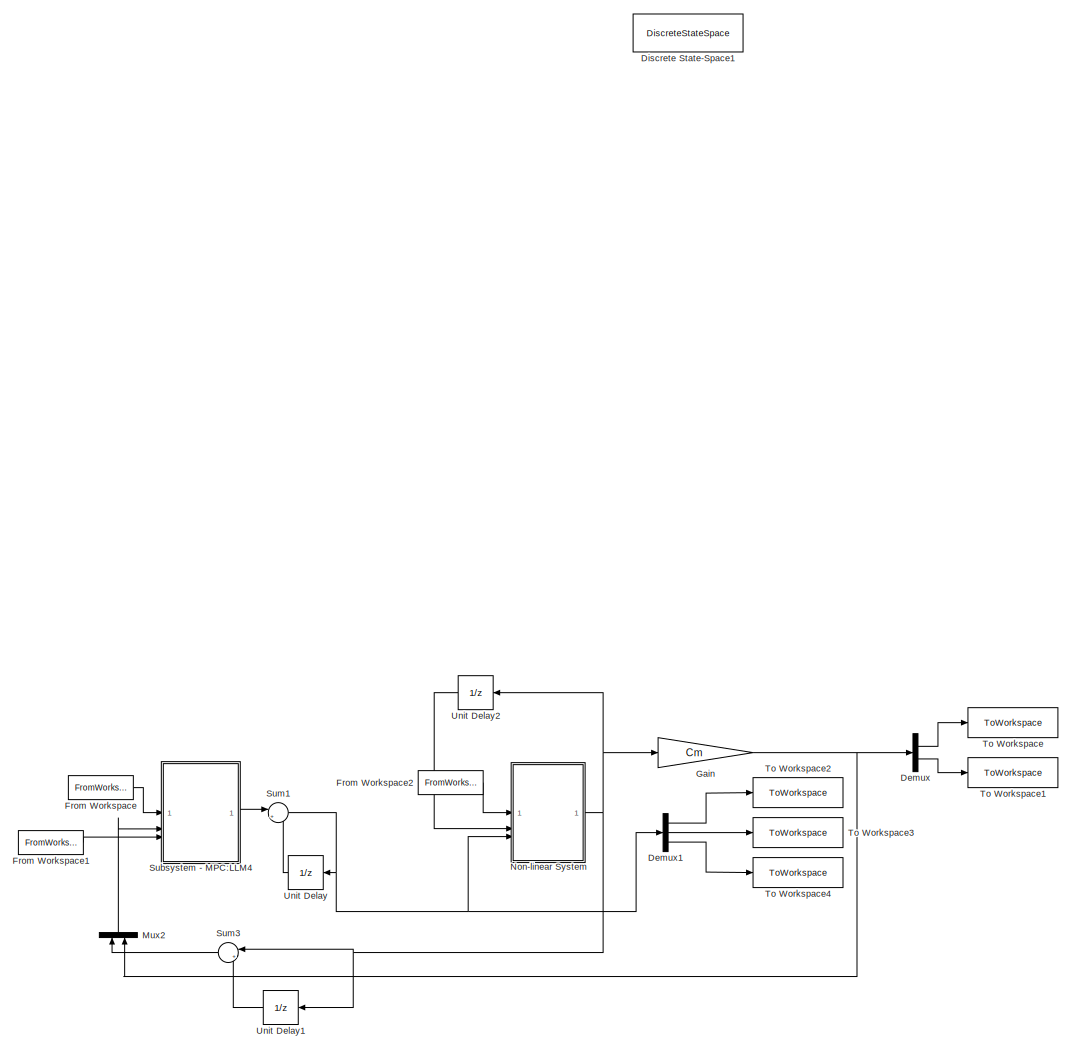
[diagram: root canvas - part 1/1, most of the canvas]
MODEL slx_29df47c121d3
KIND model
CONFIG AbsTol = auto
CONFIG EnableMultiTasking = off
CONFIG FixedStep = auto
CONFIG MaxStep = auto
CONFIG MinStep = auto
CONFIG RelTol = 1e-5
CONFIG SampleTimeConstraint = Unconstrained
CONFIG SolverName = VariableStepAuto
CONFIG StartTime = 0.0
CONFIG StopTime = T
BLOCK [Demux] Demux
  Outputs = 2
BLOCK [Demux] Demux1
  Outputs = 3
BLOCK [DiscreteStateSpace] Discrete State-Space1
  A = Am
  B = Bm
  C = C_hilf
  Commented = on
  D = D
  SampleTime = dt
BLOCK [FromWorkspace] From Workspace
  OutDataTypeStr = double
  SampleTime = dt
  VariableName = Y_fuehrung_SIM
BLOCK [FromWorkspace] From Workspace1
  OutDataTypeStr = double
  SampleTime = dt
  VariableName = dztrack_SIM
BLOCK [FromWorkspace] From Workspace2
  OutDataTypeStr = double
  SampleTime = dt
  VariableName = ztrack_SIM
BLOCK [Gain] Gain
  Gain = Cm
  Multiplication = Matrix(K*u)
BLOCK [Mux] Mux2
  DisplayOption = bar
  Inputs = 2
  NameLocation = right
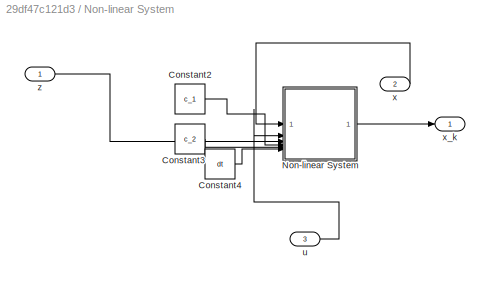
BLOCK [SubSystem] Non-linear System
BLOCK [Constant] Non-linear System/Constant2
  Value = c_1
BLOCK [Constant] Non-linear System/Constant3
  Value = c_2
BLOCK [Constant] Non-linear System/Constant4
  Value = dt
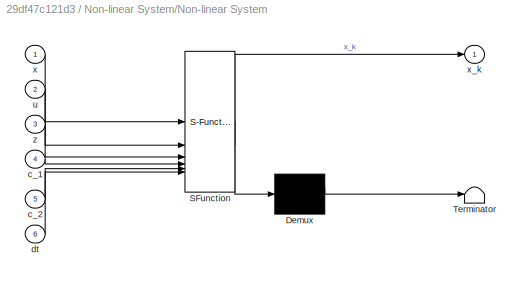
BLOCK [SubSystem] Non-linear System/Non-linear System
  ErrorFcn = Stateflow.Translate.translate
  LibrarySourceBlock = simulink/User-Defined\nFunctions/MATLAB Function
  PermitHierarchicalResolution = ExplicitOnly
  SFBlockType = MATLAB Function
  TreatAsAtomicUnit = on
BLOCK [Demux] Non-linear System/Non-linear System/ Demux 
  Outputs = 1
BLOCK [S-Function] Non-linear System/Non-linear System/ SFunction 
  EnableBusSupport = on
  FunctionName = sf_sfun
  PortCounts = [6 2]
  SFcnIsStateOwnerBlock = off
  SFunctionDeploymentMode = off
  Tag = Stateflow S-Function 1
BLOCK [Terminator] Non-linear System/Non-linear System/ Terminator 
BLOCK [Inport] Non-linear System/Non-linear System/c_1
  Port = 4
BLOCK [Inport] Non-linear System/Non-linear System/c_2
  Port = 5
BLOCK [Inport] Non-linear System/Non-linear System/dt
  Port = 6
BLOCK [Inport] Non-linear System/Non-linear System/u
  Port = 2
BLOCK [Inport] Non-linear System/Non-linear System/x
BLOCK [Outport] Non-linear System/Non-linear System/x_k
BLOCK [Inport] Non-linear System/Non-linear System/z
  Port = 3
BLOCK [Inport] Non-linear System/u
  Port = 3
BLOCK [Inport] Non-linear System/x
  Port = 2
BLOCK [Outport] Non-linear System/x_k
BLOCK [Inport] Non-linear System/z
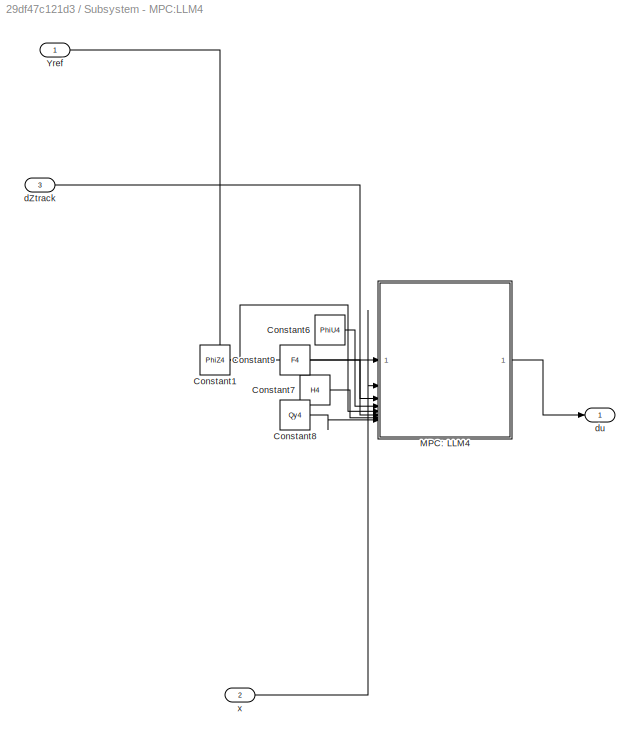
BLOCK [SubSystem] Subsystem - MPC:LLM4
BLOCK [Constant] Subsystem - MPC:LLM4/Constant1
  SampleTime = dt
  Value = PhiZ4
BLOCK [Constant] Subsystem - MPC:LLM4/Constant6
  SampleTime = dt
  Value = PhiU4
BLOCK [Constant] Subsystem - MPC:LLM4/Constant7
  SampleTime = dt
  Value = H4
BLOCK [Constant] Subsystem - MPC:LLM4/Constant8
  SampleTime = dt
  Value = Qy4
BLOCK [Constant] Subsystem - MPC:LLM4/Constant9
  SampleTime = dt
  Value = F4
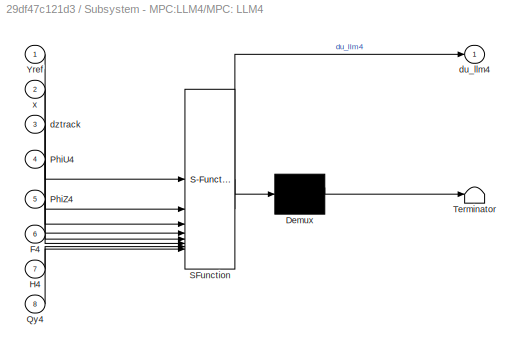
BLOCK [SubSystem] Subsystem - MPC:LLM4/MPC: LLM4
  ErrorFcn = Stateflow.Translate.translate
  LibrarySourceBlock = simulink/User-Defined\nFunctions/MATLAB Function
  PermitHierarchicalResolution = ExplicitOnly
  SFBlockType = MATLAB Function
  TreatAsAtomicUnit = on
BLOCK [Demux] Subsystem - MPC:LLM4/MPC: LLM4/ Demux 
  Outputs = 1
BLOCK [S-Function] Subsystem - MPC:LLM4/MPC: LLM4/ SFunction 
  EnableBusSupport = on
  FunctionName = sf_sfun
  PortCounts = [8 2]
  SFcnIsStateOwnerBlock = off
  SFunctionDeploymentMode = off
  Tag = Stateflow S-Function 2
BLOCK [Terminator] Subsystem - MPC:LLM4/MPC: LLM4/ Terminator 
BLOCK [Inport] Subsystem - MPC:LLM4/MPC: LLM4/F4
  Port = 6
BLOCK [Inport] Subsystem - MPC:LLM4/MPC: LLM4/H4
  Port = 7
BLOCK [Inport] Subsystem - MPC:LLM4/MPC: LLM4/PhiU4
  Port = 4
BLOCK [Inport] Subsystem - MPC:LLM4/MPC: LLM4/PhiZ4
  Port = 5
BLOCK [Inport] Subsystem - MPC:LLM4/MPC: LLM4/Qy4
  Port = 8
BLOCK [Inport] Subsystem - MPC:LLM4/MPC: LLM4/Yref
BLOCK [Outport] Subsystem - MPC:LLM4/MPC: LLM4/du_llm4
BLOCK [Inport] Subsystem - MPC:LLM4/MPC: LLM4/dztrack
  Port = 3
BLOCK [Inport] Subsystem - MPC:LLM4/MPC: LLM4/x
  Port = 2
BLOCK [Inport] Subsystem - MPC:LLM4/Yref
BLOCK [Inport] Subsystem - MPC:LLM4/dZtrack
  Port = 3
BLOCK [Outport] Subsystem - MPC:LLM4/du
BLOCK [Inport] Subsystem - MPC:LLM4/x
  Port = 2
BLOCK [Sum] Sum1
  Inputs = |++
BLOCK [Sum] Sum3
  Inputs = |+-
BLOCK [ToWorkspace] To Workspace
  FixptAsFi = on
  MaxDataPoints = inf
  SampleTime = -1
  Save2DSignal = 2-D array (concatenate along first dimension)
  VariableName = y1_llm4
BLOCK [ToWorkspace] To Workspace1
  FixptAsFi = on
  MaxDataPoints = inf
  SampleTime = -1
  Save2DSignal = 2-D array (concatenate along first dimension)
  VariableName = y2_llm4
BLOCK [ToWorkspace] To Workspace2
  FixptAsFi = on
  MaxDataPoints = inf
  SampleTime = -1
  Save2DSignal = 2-D array (concatenate along first dimension)
  VariableName = u1_llm4
BLOCK [ToWorkspace] To Workspace3
  FixptAsFi = on
  MaxDataPoints = inf
  SampleTime = -1
  Save2DSignal = 2-D array (concatenate along first dimension)
  VariableName = u2_llm4
BLOCK [ToWorkspace] To Workspace4
  FixptAsFi = on
  MaxDataPoints = inf
  SampleTime = -1
  Save2DSignal = 2-D array (concatenate along first dimension)
  VariableName = u3_llm4
BLOCK [UnitDelay] Unit Delay
  HasFrameUpgradeWarning = on
  SampleTime = dt
BLOCK [UnitDelay] Unit Delay1
  HasFrameUpgradeWarning = on
  SampleTime = -1
BLOCK [UnitDelay] Unit Delay2
  HasFrameUpgradeWarning = on
  SampleTime = -1
LINE Demux1:1 -> To Workspace2:1
LINE Demux1:2 -> To Workspace3:1
LINE Demux1:3 -> To Workspace4:1
LINE Demux:1 -> To Workspace:1
LINE Demux:2 -> To Workspace1:1
LINE From Workspace1:1 -> Subsystem - MPC:LLM4:3
LINE From Workspace2:1 -> Non-linear System:1
LINE From Workspace:1 -> Subsystem - MPC:LLM4:1
NET Gain:1 -> Demux:1, Mux2:2
LINE Mux2:1 -> Subsystem - MPC:LLM4:2
LINE Non-linear System/Constant2:1 -> Non-linear System/Non-linear System:4
LINE Non-linear System/Constant3:1 -> Non-linear System/Non-linear System:5
LINE Non-linear System/Constant4:1 -> Non-linear System/Non-linear System:6
LINE Non-linear System/Non-linear System:1 -> Non-linear System/x_k:1
LINE Non-linear System/u:1 -> Non-linear System/Non-linear System:2
LINE Non-linear System/x:1 -> Non-linear System/Non-linear System:1
LINE Non-linear System/z:1 -> Non-linear System/Non-linear System:3
NET Non-linear System:1 -> Gain:1, Sum3:1, Unit Delay1:1, Unit Delay2:1
LINE Subsystem - MPC:LLM4/Constant1:1 -> Subsystem - MPC:LLM4/MPC: LLM4:5
LINE Subsystem - MPC:LLM4/Constant6:1 -> Subsystem - MPC:LLM4/MPC: LLM4:4
LINE Subsystem - MPC:LLM4/Constant7:1 -> Subsystem - MPC:LLM4/MPC: LLM4:7
LINE Subsystem - MPC:LLM4/Constant8:1 -> Subsystem - MPC:LLM4/MPC: LLM4:8
LINE Subsystem - MPC:LLM4/Constant9:1 -> Subsystem - MPC:LLM4/MPC: LLM4:6
LINE Subsystem - MPC:LLM4/MPC: LLM4:1 -> Subsystem - MPC:LLM4/du:1
LINE Subsystem - MPC:LLM4/Yref:1 -> Subsystem - MPC:LLM4/MPC: LLM4:1
LINE Subsystem - MPC:LLM4/dZtrack:1 -> Subsystem - MPC:LLM4/MPC: LLM4:3
LINE Subsystem - MPC:LLM4/x:1 -> Subsystem - MPC:LLM4/MPC: LLM4:2
LINE Subsystem - MPC:LLM4:1 -> Sum1:1
NET Sum1:1 -> Demux1:1, Non-linear System:3, Unit Delay:1
LINE Sum3:1 -> Mux2:1
LINE Unit Delay1:1 -> Sum3:2
LINE Unit Delay2:1 -> Non-linear System:2
LINE Unit Delay:1 -> Sum1:2
note: NET lines group one-source signal fan-out (src -> all destinations, sorted); 1:1 wires keep LINE
CHART Non-linear System/Non-linear System states=1 transitions=1
  STATE_LABEL 'eML_blk_kernel()'
  STATE_LABEL 'SCRIPT:\nfunction x_k = fcn(x,u,z,c_1,c_2,dt)\n    \n    g_RS = 2.6;   \n    r_3  = 0.3;   \n    r_2 = r_3 / g_RS;    \n    r_1 = (r_2 + r_3)/2; \n    r_p = r_3-r_2;\n    r_Wheel=0.3;\n    g_TT = 66/54*80/23;\n\n    d_s  = 0.096;\n    m_p  = 1*4;    \n    m_car = 1300;\n\n    J_1  = .1;      \n    J_2  = 0.03;     \n    J_3  = 0.1;     \n    J_p  = 0.01*4;   \n    J_4  = m_car*r_Wheel^2 / g_TT^2;  \n\n    M_1 = J_1 + ...<+3608ch>'
CHART Subsystem - MPC:LLM4/MPC: LLM4 states=1 transitions=1
  STATE_LABEL 'eML_blk_kernel()'
  STATE_LABEL "SCRIPT:\nfunction du_llm4 = fcn(Yref,x,dztrack,PhiU4,PhiZ4,F4,H4,Qy4)\n    nu = 3;\n    f = -PhiU4' * Qy4 * ( Yref - F4*x - PhiZ4*dztrack);\n    dU = -H4\\f; % -inv(H)*f\n    du_llm4 = dU(1:nu,1);\n    \nend\n \n\n"
CHART  states=0 transitions=0
CHART  states=0 transitions=0
